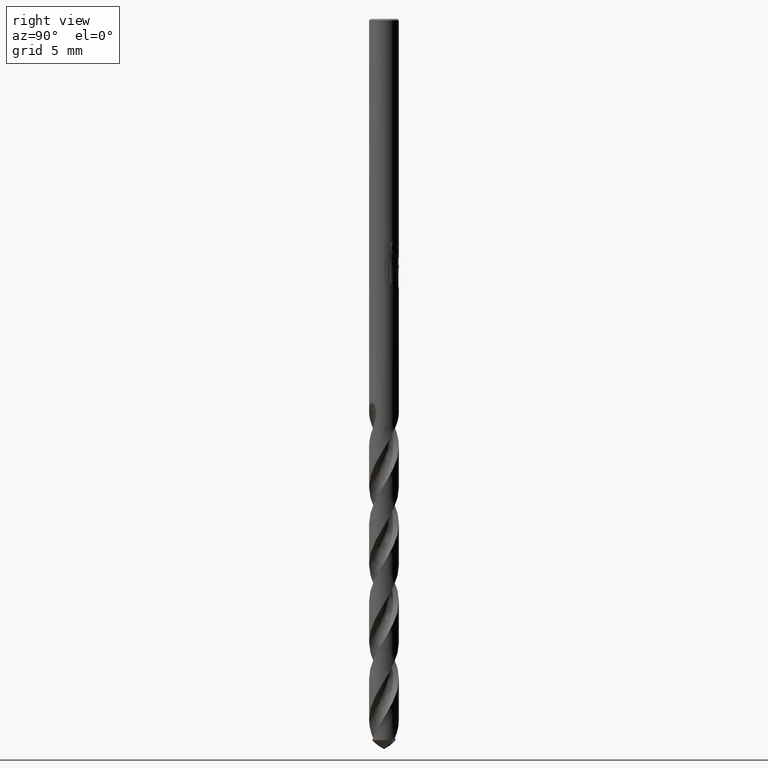
[diagram: clean part render]
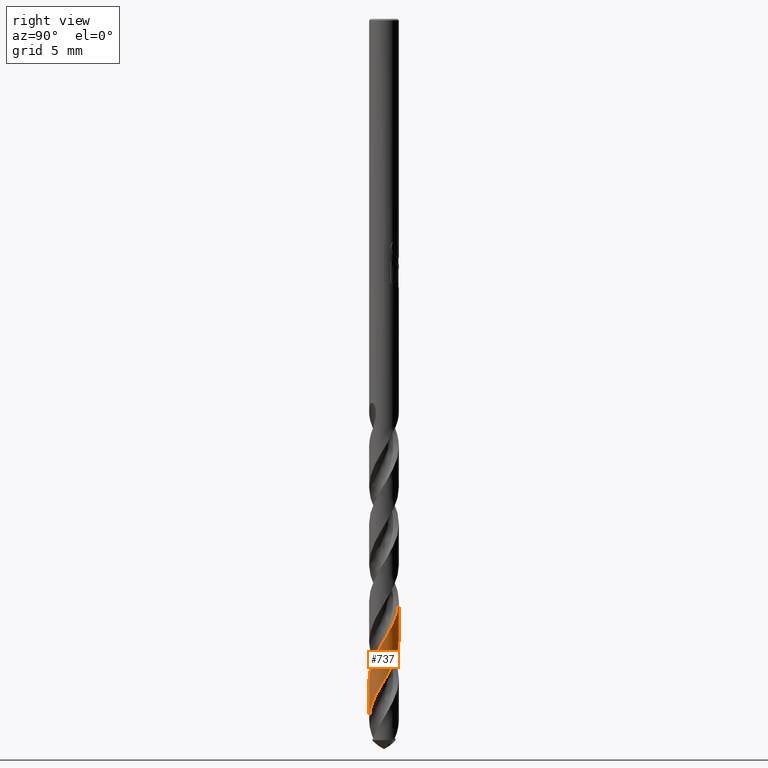
[diagram: same view with one face highlighted and labeled with its STEP entity id]
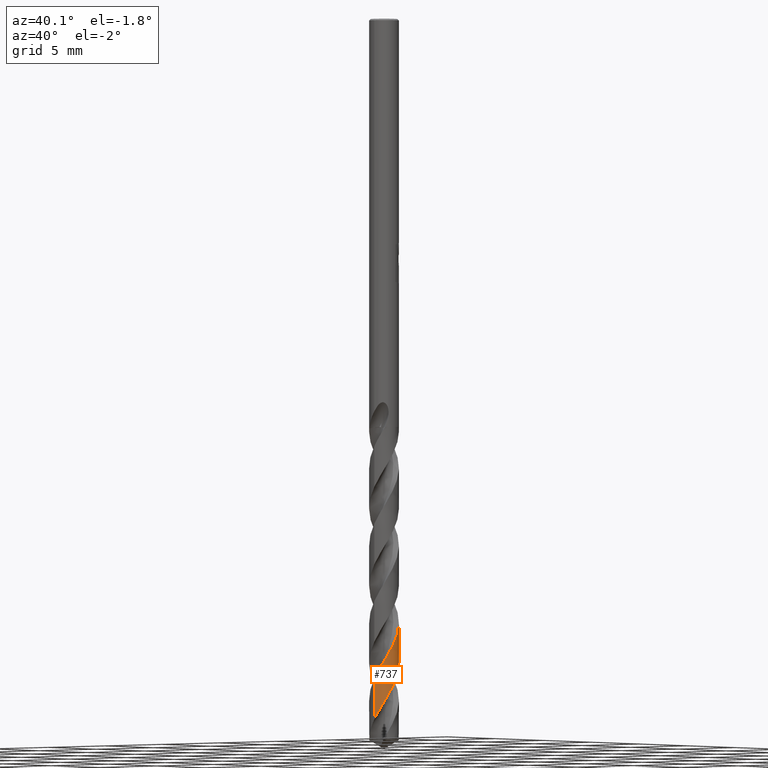
[diagram: same view with one face highlighted and labeled with its STEP entity id]
A machine part, right view. The second image highlights one B-rep face of the part: STEP entity #737.
A second angle (auxiliary view) of the same face is appended — the face is thin or edge-on in the first view.
In plain terms, the highlighted conical surface has half-angle 0 deg.
Its self-contained STEP definition (entity closure, byte-faithful):
#315=VERTEX_POINT('',#849);
#473=VERTEX_POINT('',#1020);
#583=EDGE_CURVE('',#795,#473,#1138,.T.);
#611=VERTEX_POINT('',#1168);
#629=EDGE_CURVE('',#315,#611,#1186,.T.);
#737=ADVANCED_FACE('',(#1308),#1309,.T.);
#755=EDGE_CURVE('',#795,#611,#1328,.T.);
#759=EDGE_CURVE('',#315,#473,#1332,.T.);
#795=VERTEX_POINT('',#1372);
#849=CARTESIAN_POINT('',(-2.18608580473682E-013,0.999955628579479,-39.0815229403631));
#1020=CARTESIAN_POINT('',(-1.05254811890926E-016,-0.999980393976244,-44.2820431254901));
#1138=LINE('',#4629,#4630);
#1168=CARTESIAN_POINT('',(1.05969621609961E-014,0.999968680696698,-41.8223552276919));
#1186=LINE('',#5143,#5144);
#1308=FACE_OUTER_BOUND('',#7121,.T.);
#1309=CONICAL_SURFACE('',#7122,0.99995,4.76209992157318E-006);
#1328=B_SPLINE_CURVE_WITH_KNOTS('',3,(#7187,#7188,#7189,#7190,#7191,#7192,#7193,#7194,#7195,#7196,#7197,#7198,#7199,#7200,#7201,#7202,#7203,#7204,#7205,#7206,#7207,#7208,#7209,#7210,#7211,#7212,#7213,#7214,#7215,#7216,#7217,#7218,#7219,#7220,#7221,#7222,#7223,#7224,#7225,#7226,#7227,#7228,#7229,#7230,#7231,#7232,#7233,#7234,#7235,#7236,#7237,#7238,#7239,#7240,#7241,#7242,#7243,#7244,#7245,#7246,#7247,#7248,#7249,#7250,#7251,#7252,#7253,#7254,#7255,#7256,#7257,#7258,#7259,#7260,#7261,#7262,#7263,#7264,#7265,#7266,#7267,#7268,#7269,#7270,#7271,#7272,#7273,#7274,#7275,#7276,#7277,#7278,#7279,#7280,#7281,#7282,#7283,#7284,#7285,#7286,#7287,#7288,#7289,#7290,#7291,#7292,#7293,#7294,#7295,#7296,#7297,#7298,#7299,#7300,#7301,#7302,#7303,#7304,#7305,#7306,#7307,#7308,#7309,#7310,#7311,#7312,#7313,#7314,#7315,#7316,#7317,#7318,#7319,#7320,#7321,#7322,#7323,#7324,#7325,#7326,#7327,#7328,#7329,#7330,#7331,#7332,#7333,#7334,#7335,#7336,#7337,#7338,#7339,#7340,#7341,#7342,#7343,#7344,#7345,#7346,#7347,#7348),.UNSPECIFIED.,.F.,.F.,(4,2,2,2,2,2,2,2,2,2,2,2,2,2,2,2,2,2,2,2,2,2,2,2,2,2,2,2,2,2,2,2,2,2,2,2,2,2,2,2,2,2,2,2,2,2,2,2,2,2,2,2,2,2,2,2,2,2,2,2,2,2,2,2,2,2,2,2,2,2,2,2,2,2,2,2,2,2,2,2,4),(0.0,0.140564455657881,0.705910972769532,0.96913414407209,1.35393639490201,1.53594426473142,1.7530889950736,2.45448441391358,2.49523314449073,3.09830556355897,3.34016229741105,4.03058293585882,4.11538521269099,4.75953051351781,4.95781017947195,5.33016819367588,5.51299303997374,5.73848300044366,6.43810748282622,6.4800193485302,7.07575574318855,7.59217081390022,7.95721429921044,8.15742826828851,8.53060160815402,8.7143819419641,9.09848745840183,9.45959927504986,10.0113818257194,10.3773914054012,10.5676570087411,10.9532641035751,11.1367819995707,11.3497099029085,12.0661004877584,12.1064505496225,12.7260932607966,13.1069669425992,13.4657956578065,13.9984170846046,14.3614654606973,14.5547068180242,14.9317204920314,15.1141059748938,15.3324123124755,16.036191029549,16.0772770219455,16.6808370477866,16.9232669903893,17.6134567355966,17.6988892302687,18.3416180911916,18.5429115427709,18.9133919437673,19.0967365593222,19.4801550427055,19.8383239885714,20.4003267929132,20.7656810762996,20.9518643670263,21.3422117921762,21.5251617782646,21.7342006610223,22.1053374795917,22.4338506619976,22.4534439191066,23.0081590553991,23.8180861949536,23.9479194944267,24.0768830279872,24.163270212141,24.2538189139902,24.3949603098037,24.5084417014939,24.5931835029819,24.6441638688701,24.689904101752,24.7480899906125,24.86688419515,25.1213909236893,25.4279416749134),.UNSPECIFIED.);
#1332=B_SPLINE_CURVE_WITH_KNOTS('',3,(#7353,#7354,#7355,#7356,#7357,#7358,#7359,#7360,#7361,#7362,#7363,#7364,#7365,#7366,#7367,#7368,#7369,#7370,#7371,#7372,#7373,#7374,#7375,#7376,#7377,#7378,#7379,#7380,#7381,#7382,#7383,#7384,#7385,#7386,#7387,#7388,#7389,#7390,#7391,#7392,#7393,#7394,#7395,#7396,#7397,#7398,#7399,#7400,#7401,#7402,#7403,#7404,#7405,#7406,#7407,#7408,#7409,#7410,#7411,#7412,#7413,#7414,#7415,#7416,#7417,#7418,#7419,#7420,#7421,#7422,#7423,#7424,#7425,#7426,#7427,#7428,#7429,#7430,#7431,#7432,#7433,#7434,#7435,#7436,#7437,#7438,#7439,#7440,#7441,#7442,#7443,#7444,#7445,#7446,#7447,#7448,#7449,#7450,#7451,#7452,#7453,#7454,#7455,#7456,#7457,#7458,#7459,#7460,#7461,#7462,#7463,#7464,#7465,#7466,#7467,#7468,#7469,#7470,#7471,#7472,#7473,#7474,#7475,#7476,#7477,#7478,#7479,#7480,#7481,#7482,#7483,#7484,#7485,#7486,#7487,#7488,#7489,#7490,#7491,#7492,#7493,#7494,#7495,#7496,#7497,#7498,#7499,#7500,#7501,#7502,#7503,#7504,#7505,#7506,#7507,#7508,#7509,#7510,#7511,#7512,#7513,#7514,#7515,#7516,#7517,#7518,#7519,#7520,#7521,#7522,#7523,#7524,#7525,#7526,#7527,#7528,#7529,#7530,#7531,#7532,#7533,#7534,#7535,#7536,#7537,#7538,#7539,#7540,#7541,#7542,#7543,#7544,#7545,#7546,#7547,#7548,#7549,#7550,#7551,#7552,#7553,#7554,#7555,#7556,#7557,#7558,#7559,#7560),.UNSPECIFIED.,.F.,.F.,(4,2,2,2,2,2,2,2,2,2,2,2,2,2,2,2,2,2,2,2,2,2,2,2,2,2,2,2,2,2,2,2,2,2,2,2,2,2,2,2,2,2,2,2,2,2,2,2,2,2,2,2,2,2,2,2,2,2,2,2,2,2,2,2,2,2,2,2,2,2,2,2,2,2,2,2,2,2,2,2,2,2,2,2,2,2,2,2,2,2,2,2,2,2,2,2,2,2,2,2,2,2,2,4),(0.0,0.070093670708242,0.0892226509933403,0.0981457888768246,0.103952079739878,0.108542523141387,0.112137212113539,0.114929148139967,0.117082761360161,0.118734678135138,0.119996056034912,0.120955781249582,0.12168394898939,0.122235228024858,0.24480868383175,0.273356355975355,0.288902510916104,0.301907356563827,0.317265195362751,0.344957297456819,0.379086675039331,0.424483255215321,0.565256895664594,0.630425794679281,0.679644420351133,0.733074871864472,0.762228760970097,0.835259402492003,1.0057197183772,1.1658654022676,1.18585962247996,1.52860160674236,1.57313255818488,2.03668523874026,2.22333953402721,2.45809219165768,2.94994322032421,3.25617156440019,3.8288138071226,3.94217262629708,4.36112238801579,4.53271253655954,4.80302610480046,5.30941364745821,5.5795891243931,6.13781468433169,6.36980223202512,6.95994976968794,7.01331592364357,7.40012039465199,7.75912614930561,7.78469109723106,8.16815858082124,8.5266956302814,8.55259748258698,8.92980494258499,9.28733368322655,9.34033971356227,9.72933461668136,9.9084120232756,10.2333849386378,10.7985280560881,10.9129363589856,11.3259394095172,11.5042181303728,11.7777920299031,12.2838220434481,12.5527120870136,13.1096086441436,13.3415945511472,13.9304186020947,13.983751450188,14.3694780677714,14.7278340101031,14.75340024316,15.1353898038781,15.4932034728304,15.5191530255325,15.8942037479938,16.2508823478335,16.3041844856681,16.6895760345817,17.0476604404329,17.0604604679671,17.4310471707016,18.1507132899162,18.5013784739701,18.7488030849239,19.3176892963192,19.4300091250434,19.8481253783219,20.0187993666651,20.2886075464374,20.7940084789581,21.0618729570711,21.619220727253,21.8500499881893,22.4371133771515,22.4899614126565,22.8779147357416,23.4854494898643,23.7862900006021,23.9381718812205,24.0892537509298),.UNSPECIFIED.);
#1372=CARTESIAN_POINT('',(-5.38096767631217E-012,-0.999993446951017,-47.023055491423));
#4629=CARTESIAN_POINT('',(1.22553561540051E-016,-0.99995,-37.8995696904862));
#4630=VECTOR('',#8702,1.0);
#5143=CARTESIAN_POINT('',(-1.22355463160886E-016,0.99995,-37.8995696904862));
#5144=VECTOR('',#8743,1.0);
#7121=EDGE_LOOP('',(#8923,#8924,#8925,#8926));
#7122=AXIS2_PLACEMENT_3D('',#8927,#8928,#8929);
#7187=CARTESIAN_POINT('',(-0.738484525051719,-0.67427042517015,-48.3991393809724));
#7188=CARTESIAN_POINT('',(-0.722199315005534,-0.692106272565409,-48.35898905715));
#7189=CARTESIAN_POINT('',(-0.705339529610619,-0.709276450287738,-48.3187399679762));
#7190=CARTESIAN_POINT('',(-0.617729785424609,-0.792308193506981,-48.117561982592));
#7191=CARTESIAN_POINT('',(-0.53816816169285,-0.848412606628382,-47.9591542025126));
#7192=CARTESIAN_POINT('',(-0.411158045886165,-0.912681508742219,-47.7237100044493));
#7193=CARTESIAN_POINT('',(-0.369552527325461,-0.930297163590966,-47.6485890662762));
#7194=CARTESIAN_POINT('',(-0.264753109744293,-0.966557372480458,-47.4645833204485));
#7195=CARTESIAN_POINT('',(-0.200442660016673,-0.981927470895965,-47.3561282568962));
#7196=CARTESIAN_POINT('',(-0.103973603421656,-0.99506552730784,-47.1954615719139));
#7197=CARTESIAN_POINT('',(-0.0728596298296796,-0.997823310659707,-47.1439326218183));
#7198=CARTESIAN_POINT('',(-0.00455217296671234,-1.00067453909161,-47.0306717324577));
#7199=CARTESIAN_POINT('',(0.0325771020062908,-1.00014922136005,-46.9688059508543));
#7200=CARTESIAN_POINT('',(0.188959270596307,-0.989245724266842,-46.7084358859468));
#7201=CARTESIAN_POINT('',(0.305707973679284,-0.959572063556649,-46.5143929488935));
#7202=CARTESIAN_POINT('',(0.420677671741299,-0.907225690007048,-46.3040624505032));
#7203=CARTESIAN_POINT('',(0.426957484545644,-0.904287404632888,-46.2925092983669));
#7204=CARTESIAN_POINT('',(0.52609439421267,-0.856632316758311,-46.1094570126849));
#7205=CARTESIAN_POINT('',(0.611614923219036,-0.797865416588582,-45.9410527638497));
#7206=CARTESIAN_POINT('',(0.716885875927187,-0.698403557398639,-45.7014017591294));
#7207=CARTESIAN_POINT('',(0.745151172716409,-0.668149737055001,-45.6325083997187));
#7208=CARTESIAN_POINT('',(0.846306494784769,-0.545523237120697,-45.3684316947228));
#7209=CARTESIAN_POINT('',(0.904506802091092,-0.442318284594167,-45.1773920805992));
#7210=CARTESIAN_POINT('',(0.948239372122953,-0.317832728097977,-44.9579148437989));
#7211=CARTESIAN_POINT('',(0.952722592307633,-0.304131180416973,-44.9338834902299));
#7212=CARTESIAN_POINT('',(0.98880663848588,-0.18518052744856,-44.7272045356481));
#7213=CARTESIAN_POINT('',(1.00316935284512,-0.0755265524892393,-44.5482782947757));
#7214=CARTESIAN_POINT('',(0.998226970857536,0.0681871703622886,-44.3098118033893));
#7215=CARTESIAN_POINT('',(0.995352948405098,0.101858463290165,-44.2534818325813));
#7216=CARTESIAN_POINT('',(0.982188357173267,0.198224366580504,-44.092014779339));
#7217=CARTESIAN_POINT('',(0.967616208646302,0.260266351971846,-43.9873997487296));
#7218=CARTESIAN_POINT('',(0.93714724149427,0.350272334577914,-43.8306007354687));
#7219=CARTESIAN_POINT('',(0.925740546419785,0.379387239958744,-43.7790329503057));
#7220=CARTESIAN_POINT('',(0.897305876097893,0.443033935710796,-43.6636070012304));
#7221=CARTESIAN_POINT('',(0.879623673713499,0.477164172754448,-43.5995999179408));
#7222=CARTESIAN_POINT('',(0.799400228556712,0.612416719920957,-43.3383914320007));
#7223=CARTESIAN_POINT('',(0.721071717432096,0.702911528629259,-43.1455100604279));
#7224=CARTESIAN_POINT('',(0.623284372833302,0.781994301472576,-42.9362034188597));
#7225=CARTESIAN_POINT('',(0.617722208691774,0.78639531290022,-42.9243818005519));
#7226=CARTESIAN_POINT('',(0.53226363884951,0.852546701034206,-42.7444772765386));
#7227=CARTESIAN_POINT('',(0.443407953480435,0.902002266099788,-42.5792834322102));
#7228=CARTESIAN_POINT('',(0.26603709232243,0.967928801037208,-42.2663299027652));
#7229=CARTESIAN_POINT('',(0.179983198328796,0.987567810031899,-42.1202672236055));
#7230=CARTESIAN_POINT('',(0.0304203724141995,1.00143992401368,-41.8722912994017));
#7231=CARTESIAN_POINT('',(-0.0318201278840287,1.00138324211251,-41.7702306425811));
#7232=CARTESIAN_POINT('',(-0.127404566661899,0.992401015135547,-41.6110304881607));
#7233=CARTESIAN_POINT('',(-0.161001948686243,0.98750481164016,-41.5544368146233));
#7234=CARTESIAN_POINT('',(-0.2563757485849,0.968611790519179,-41.3930194069383));
#7235=CARTESIAN_POINT('',(-0.317260389422051,0.95042940782693,-41.2887059628722));
#7236=CARTESIAN_POINT('',(-0.405134201255511,0.91475483835804,-41.1322107378044));
#7237=CARTESIAN_POINT('',(-0.433525790166505,0.90164304112015,-41.0806386969442));
#7238=CARTESIAN_POINT('',(-0.519112542617691,0.857150920194061,-40.9209265413749));
#7239=CARTESIAN_POINT('',(-0.573913671307043,0.821474165488676,-40.81225084292));
#7240=CARTESIAN_POINT('',(-0.672873417007595,0.742253506095299,-40.6026327508775));
#7241=CARTESIAN_POINT('',(-0.717185294131617,0.69953089589547,-40.5017153477991));
#7242=CARTESIAN_POINT('',(-0.818594916441859,0.581923515336604,-40.2449868114184));
#7243=CARTESIAN_POINT('',(-0.869588934551328,0.50256127073063,-40.0890846862779));
#7244=CARTESIAN_POINT('',(-0.934797766701728,0.360496230219901,-39.8310714388432));
#7245=CARTESIAN_POINT('',(-0.955396355827141,0.301645882378218,-39.7288079678262));
#7246=CARTESIAN_POINT('',(-0.978175617313712,0.210071746601936,-39.5722045844872));
#7247=CARTESIAN_POINT('',(-0.984435954880597,0.178446877150586,-39.518461285887));
#7248=CARTESIAN_POINT('',(-0.998750606292269,0.0817991847153003,-39.356305899369));
#7249=CARTESIAN_POINT('',(-1.00198001256782,0.0161857921076621,-39.2485416826285));
#7250=CARTESIAN_POINT('',(-0.997189947745499,-0.0806253239972092,-39.0885710932637));
#7251=CARTESIAN_POINT('',(-0.994184817899785,-0.111707754439696,-39.0370511716718));
#7252=CARTESIAN_POINT('',(-0.984586581144885,-0.178343812516999,-38.9254984830411));
#7253=CARTESIAN_POINT('',(-0.977508195463067,-0.213743066209354,-38.865349259055));
#7254=CARTESIAN_POINT('',(-0.938388528798712,-0.36611458176961,-38.6040953760411));
#7255=CARTESIAN_POINT('',(-0.887185984616681,-0.476885560361333,-38.4076231344038));
#7256=CARTESIAN_POINT('',(-0.813663005234211,-0.581293119050283,-38.1948754347008));
#7257=CARTESIAN_POINT('',(-0.809664933869712,-0.58684989261496,-38.1834785026486));
#7258=CARTESIAN_POINT('',(-0.742953491580983,-0.677567801648206,-37.9961451671542));
#7259=CARTESIAN_POINT('',(-0.667170111709713,-0.752339015263871,-37.8235785508865));
#7260=CARTESIAN_POINT('',(-0.527891837208835,-0.851745211461275,-37.5401924610738));
#7261=CARTESIAN_POINT('',(-0.471290054818933,-0.88433035798103,-37.4316621593313));
#7262=CARTESIAN_POINT('',(-0.355793532563554,-0.936528011283509,-37.2221017714091));
#7263=CARTESIAN_POINT('',(-0.297559327921842,-0.956624208156466,-37.1211017112851));
#7264=CARTESIAN_POINT('',(-0.149224654098581,-0.992949092297788,-36.8685823929057));
#7265=CARTESIAN_POINT('',(-0.0580332707330558,-1.00243154838596,-36.7169685967634));
#7266=CARTESIAN_POINT('',(0.0955284822783572,-0.99731604134636,-36.4633333765432));
#7267=CARTESIAN_POINT('',(0.157330255329361,-0.989435558160912,-36.3611583002987));
#7268=CARTESIAN_POINT('',(0.250122825421102,-0.968717316577472,-36.203426150999));
#7269=CARTESIAN_POINT('',(0.281916721533923,-0.959945597886621,-36.1484433055983));
#7270=CARTESIAN_POINT('',(0.374408526113763,-0.929433273552373,-35.9867705570036));
#7271=CARTESIAN_POINT('',(0.433579433518753,-0.903365563152971,-35.880662719845));
#7272=CARTESIAN_POINT('',(0.517201767387645,-0.85636426862262,-35.7223580711615));
#7273=CARTESIAN_POINT('',(0.543695052960109,-0.839790057949262,-35.6708101158698));
#7274=CARTESIAN_POINT('',(0.600027797089361,-0.800773480487858,-35.5573055447826));
#7275=CARTESIAN_POINT('',(0.629432586065166,-0.777865625406259,-35.495215542564));
#7276=CARTESIAN_POINT('',(0.747792525923413,-0.674578821729575,-35.2342958168084));
#7277=CARTESIAN_POINT('',(0.823070958735742,-0.580281713212356,-35.0399177170882));
#7278=CARTESIAN_POINT('',(0.883198643936928,-0.468913267416842,-34.8291812551183));
#7279=CARTESIAN_POINT('',(0.886449126114357,-0.462739317914894,-34.817553600221));
#7280=CARTESIAN_POINT('',(0.936630664986026,-0.364942762399821,-34.6346154050431));
#7281=CARTESIAN_POINT('',(0.969262469088742,-0.266568697239353,-34.4663942232149));
#7282=CARTESIAN_POINT('',(0.993103213804088,-0.123818756405705,-34.2269020238067));
#7283=CARTESIAN_POINT('',(0.997366795278706,-0.0826177908383093,-34.1579780065168));
#7284=CARTESIAN_POINT('',(1.00393614621348,0.075947148035791,-33.894316417437));
#7285=CARTESIAN_POINT('',(0.988091069301638,0.193087065308629,-33.7036904059803));
#7286=CARTESIAN_POINT('',(0.947933282006336,0.318576630617238,-33.4845351078282));
#7287=CARTESIAN_POINT('',(0.943217329552829,0.332279964673976,-33.4603750352378));
#7288=CARTESIAN_POINT('',(0.900368331915633,0.448492195048158,-33.2544096568378));
#7289=CARTESIAN_POINT('',(0.845983423436226,0.544193928412243,-33.0762680646632));
#7290=CARTESIAN_POINT('',(0.755527515236829,0.655900238141272,-32.8379327642879));
#7291=CARTESIAN_POINT('',(0.73264944202365,0.681356596329483,-32.780882349355));
#7292=CARTESIAN_POINT('',(0.664065279838295,0.750221903146912,-32.6195096910319));
#7293=CARTESIAN_POINT('',(0.615424109544901,0.790633754251854,-32.5156789593093));
#7294=CARTESIAN_POINT('',(0.537301446904024,0.843880321516215,-32.3596692865335));
#7295=CARTESIAN_POINT('',(0.5106567020185,0.860262366127585,-32.3080899212047));
#7296=CARTESIAN_POINT('',(0.426163404476766,0.906914173439775,-32.1482940055048));
#7297=CARTESIAN_POINT('',(0.366069440372105,0.932797556368061,-32.0395426606916));
#7298=CARTESIAN_POINT('',(0.245600507803034,0.971211687908972,-31.8304279907407));
#7299=CARTESIAN_POINT('',(0.185839236596231,0.984396137637914,-31.7300780045323));
#7300=CARTESIAN_POINT('',(0.0301549368880414,1.00404919783345,-31.4706724286525));
#7301=CARTESIAN_POINT('',(-0.0661683235198309,1.00233028128501,-31.3115216833512));
#7302=CARTESIAN_POINT('',(-0.222436993319134,0.976855988370688,-31.0501945551338));
#7303=CARTESIAN_POINT('',(-0.282798771591892,0.961101826155468,-30.9478685278629));
#7304=CARTESIAN_POINT('',(-0.370937343573779,0.929106936141538,-30.7922107509228));
#7305=CARTESIAN_POINT('',(-0.40011747535074,0.916919427372441,-30.7394943332706));
#7306=CARTESIAN_POINT('',(-0.488732508621416,0.874860817487525,-30.5767019026326));
#7307=CARTESIAN_POINT('',(-0.545844975288704,0.840431856561825,-30.4673263229924));
#7308=CARTESIAN_POINT('',(-0.624217947552668,0.781764452475701,-30.3057252797825));
#7309=CARTESIAN_POINT('',(-0.648299129087411,0.761909142557163,-30.2542171281949));
#7310=CARTESIAN_POINT('',(-0.697753234408749,0.717100465777101,-30.1435999579022));
#7311=CARTESIAN_POINT('',(-0.722773866213816,0.691870199852743,-30.0843832967033));
#7312=CARTESIAN_POINT('',(-0.78835206811103,0.618303744158127,-29.9207679966562));
#7313=CARTESIAN_POINT('',(-0.825839547201061,0.567291906712232,-29.81685589196));
#7314=CARTESIAN_POINT('',(-0.887063124239315,0.464844546282743,-29.6199215353713));
#7315=CARTESIAN_POINT('',(-0.911608721918706,0.414589207457502,-29.5278674180468));
#7316=CARTESIAN_POINT('',(-0.932992620763499,0.359659721926498,-29.4296126140782));
#7317=CARTESIAN_POINT('',(-0.934180513532356,0.356562965545715,-29.4240816467865));
#7318=CARTESIAN_POINT('',(-0.968690439556052,0.265234166422015,-29.2613770932965));
#7319=CARTESIAN_POINT('',(-0.989481026963274,0.172496765325743,-29.1064065065218));
#7320=CARTESIAN_POINT('',(-1.00766276850188,-0.0603278871683423,-28.7211288933858));
#7321=CARTESIAN_POINT('',(-0.989574727183177,-0.198481700376152,-28.4919468398565));
#7322=CARTESIAN_POINT('',(-0.937303391110441,-0.348933322777412,-28.2297364113197));
#7323=CARTESIAN_POINT('',(-0.929361732239772,-0.369579014567051,-28.1935794260239));
#7324=CARTESIAN_POINT('',(-0.912073788988557,-0.41038517895127,-28.1216482705659));
#7325=CARTESIAN_POINT('',(-0.903202938681155,-0.42950183723322,-28.0879368961998));
#7326=CARTESIAN_POINT('',(-0.887485007708799,-0.46084073257251,-28.0312903967272));
#7327=CARTESIAN_POINT('',(-0.880964888541979,-0.473178787159706,-28.008539366582));
#7328=CARTESIAN_POINT('',(-0.867209170076392,-0.497959840687348,-27.9617182259691));
#7329=CARTESIAN_POINT('',(-0.859973994520044,-0.510343689664013,-27.9377044335752));
#7330=CARTESIAN_POINT('',(-0.841028561490478,-0.541260961991938,-27.8758880623207));
#7331=CARTESIAN_POINT('',(-0.82914636877236,-0.559251577683591,-27.8381023031855));
#7332=CARTESIAN_POINT('',(-0.807285337345083,-0.590236853780586,-27.769050898406));
#7333=CARTESIAN_POINT('',(-0.80055046340868,-0.599152277309695,-27.7476477690733));
#7334=CARTESIAN_POINT('',(-0.792278831699873,-0.61002577354522,-27.7222076036027));
#7335=CARTESIAN_POINT('',(-0.788636110189819,-0.614729939399975,-27.7114009450405));
#7336=CARTESIAN_POINT('',(-0.782613556930654,-0.622360156294485,-27.694185222821));
#7337=CARTESIAN_POINT('',(-0.780310254399478,-0.625246038617839,-27.6877436921523));
#7338=CARTESIAN_POINT('',(-0.775858396839913,-0.630759552689185,-27.6755665178735));
#7339=CARTESIAN_POINT('',(-0.773719031952073,-0.633382293062382,-27.6698284604895));
#7340=CARTESIAN_POINT('',(-0.76877762754844,-0.639376518337915,-27.6568350560977));
#7341=CARTESIAN_POINT('',(-0.765954919068644,-0.64275604399948,-27.6495949718059));
#7342=CARTESIAN_POINT('',(-0.757190240507948,-0.653106420282382,-27.6276711657615));
#7343=CARTESIAN_POINT('',(-0.751070364699547,-0.660141409753493,-27.6131107258865));
#7344=CARTESIAN_POINT('',(-0.73102927923199,-0.682507889874452,-27.567782501803));
#7345=CARTESIAN_POINT('',(-0.716266473000236,-0.698045771616689,-27.5376899887702));
#7346=CARTESIAN_POINT('',(-0.680929370179428,-0.732712386911077,-27.4726965691021));
#7347=CARTESIAN_POINT('',(-0.65997418078362,-0.75173713370598,-27.4384239665006));
#7348=CARTESIAN_POINT('',(-0.637187381357094,-0.770579196874355,-27.405));
#7353=CARTESIAN_POINT('',(-0.695006639413528,0.71886426311742,-27.405));
#7354=CARTESIAN_POINT('',(-0.686753916768532,0.726843229698256,-27.4253502132792));
#7355=CARTESIAN_POINT('',(-0.678323015206344,0.734720573492868,-27.445708737283));
#7356=CARTESIAN_POINT('',(-0.667299952437083,0.744662066626922,-27.4716005979767));
#7357=CARTESIAN_POINT('',(-0.664921790348519,0.746786438456378,-27.4771456817759));
#7358=CARTESIAN_POINT('',(-0.661409255279312,0.749893888844219,-27.4852733811152));
#7359=CARTESIAN_POINT('',(-0.660288507372421,0.750880929202602,-27.4878575092011));
#7360=CARTESIAN_POINT('',(-0.658432427064547,0.752508188052604,-27.4921217399208));
#7361=CARTESIAN_POINT('',(-0.657699276534681,0.753149065441544,-27.4938021799012));
#7362=CARTESIAN_POINT('',(-0.656383716012707,0.7542956601953,-27.4968104643701));
#7363=CARTESIAN_POINT('',(-0.655801918011095,0.754801552819003,-27.4981383901501));
#7364=CARTESIAN_POINT('',(-0.654762789199801,0.75570299854625,-27.5005057279552));
#7365=CARTESIAN_POINT('',(-0.654305849341278,0.756098669678374,-27.5015452072493));
#7366=CARTESIAN_POINT('',(-0.65349294986344,0.756801281530981,-27.5033917411134));
#7367=CARTESIAN_POINT('',(-0.653137234249793,0.757108299069921,-27.5041988453015));
#7368=CARTESIAN_POINT('',(-0.65250649155641,0.757651916042392,-27.505628344354));
#7369=CARTESIAN_POINT('',(-0.652231613782794,0.757888564023244,-27.5062507732045));
#7370=CARTESIAN_POINT('',(-0.651745513181739,0.758306597509196,-27.5073505232775));
#7371=CARTESIAN_POINT('',(-0.651534380223361,0.758488012947103,-27.5078278665955));
#7372=CARTESIAN_POINT('',(-0.651161806637446,0.75880787533276,-27.5086696366418));
#7373=CARTESIAN_POINT('',(-0.651000419269214,0.758946340464901,-27.5090340774535));
#7374=CARTESIAN_POINT('',(-0.65071610988029,0.759190111235994,-27.5096757663384));
#7375=CARTESIAN_POINT('',(-0.65059321913052,0.759295427704186,-27.5099530230204));
#7376=CARTESIAN_POINT('',(-0.650377013084256,0.759480623642356,-27.5104406189358));
#7377=CARTESIAN_POINT('',(-0.650283716070796,0.759560509412632,-27.510650963144));
#7378=CARTESIAN_POINT('',(-0.650119742914925,0.759700859415881,-27.5110205411348));
#7379=CARTESIAN_POINT('',(-0.650049077239646,0.759761327407562,-27.5111797780874));
#7380=CARTESIAN_POINT('',(-0.634263197970109,0.773265348984374,-27.5467434081671));
#7381=CARTESIAN_POINT('',(-0.618091721199027,0.786268234308424,-27.5813691539059));
#7382=CARTESIAN_POINT('',(-0.597112869549945,0.802049225557741,-27.6243469517687));
#7383=CARTESIAN_POINT('',(-0.593118582100216,0.805007721581712,-27.6324500303653));
#7384=CARTESIAN_POINT('',(-0.586895794777429,0.809544959485163,-27.6449629053831));
#7385=CARTESIAN_POINT('',(-0.584692888697846,0.811137484505697,-27.6493714128908));
#7386=CARTESIAN_POINT('',(-0.58063001811265,0.814049401456039,-27.657465982856));
#7387=CARTESIAN_POINT('',(-0.578773428977938,0.815370477906136,-27.6611512050839));
#7388=CARTESIAN_POINT('',(-0.574710915180997,0.818240301669586,-27.6691871524839));
#7389=CARTESIAN_POINT('',(-0.572503308006053,0.819786468027862,-27.6735361711871));
#7390=CARTESIAN_POINT('',(-0.566292602875384,0.824098947190494,-27.6857260027351));
#7391=CARTESIAN_POINT('',(-0.562274739911441,0.826845598469103,-27.69355945903));
#7392=CARTESIAN_POINT('',(-0.553253988293155,0.832915979026763,-27.711052678553));
#7393=CARTESIAN_POINT('',(-0.548246152952279,0.83622077976043,-27.7207002484902));
#7394=CARTESIAN_POINT('',(-0.536512936314599,0.843813244860268,-27.7432048699239));
#7395=CARTESIAN_POINT('',(-0.529787962963132,0.848052427439174,-27.7560441851921));
#7396=CARTESIAN_POINT('',(-0.501649246832621,0.865317924127809,-27.8097335469335));
#7397=CARTESIAN_POINT('',(-0.480027388163827,0.877487083075364,-27.8507251090004));
#7398=CARTESIAN_POINT('',(-0.448028556968267,0.893982697163793,-27.9105244663407));
#7399=CARTESIAN_POINT('',(-0.437823760084602,0.899024296675206,-27.9294722045672));
#7400=CARTESIAN_POINT('',(-0.419782952585181,0.90755792205989,-27.9627150719036));
#7401=CARTESIAN_POINT('',(-0.411972758605289,0.911129908574778,-27.9770246068078));
#7402=CARTESIAN_POINT('',(-0.39558930854043,0.918369103900306,-28.0068562455782));
#7403=CARTESIAN_POINT('',(-0.387003304509916,0.922020362989878,-28.0223857662019));
#7404=CARTESIAN_POINT('',(-0.373645491477292,0.927481086105418,-28.0463750296144));
#7405=CARTESIAN_POINT('',(-0.368912419384235,0.929373923664618,-28.0548424616103));
#7406=CARTESIAN_POINT('',(-0.352262386837468,0.935885140999944,-28.0845121112813));
#7407=CARTESIAN_POINT('',(-0.34025928024056,0.940315969726997,-28.1056920511544));
#7408=CARTESIAN_POINT('',(-0.299955542492785,0.954319807017216,-28.176300233873));
#7409=CARTESIAN_POINT('',(-0.271298246767259,0.962860047691806,-28.2256351193585));
#7410=CARTESIAN_POINT('',(-0.215025468129447,0.976914639000762,-28.3214634848969));
#7411=CARTESIAN_POINT('',(-0.187520090511672,0.982563819635035,-28.3678331633429));
#7412=CARTESIAN_POINT('',(-0.156385422201784,0.987605983937985,-28.4200878338204));
#7413=CARTESIAN_POINT('',(-0.152925982237492,0.988147603981866,-28.4258901622732));
#7414=CARTESIAN_POINT('',(-0.0901077499026485,0.99764472430652,-28.5311712174467));
#7415=CARTESIAN_POINT('',(-0.0300263996940724,1.00126029162375,-28.6305722496939));
#7416=CARTESIAN_POINT('',(0.0378516387060977,0.999220208993788,-28.7429434680311));
#7417=CARTESIAN_POINT('',(0.0456524561608959,0.998894259336931,-28.7558576520909));
#7418=CARTESIAN_POINT('',(0.134612600613999,0.994132846492307,-28.903274161865));
#7419=CARTESIAN_POINT('',(0.21496417253504,0.979905880997458,-29.0375734821443));
#7420=CARTESIAN_POINT('',(0.32400406634097,0.946525438066899,-29.2262523226919));
#7421=CARTESIAN_POINT('',(0.354820349367274,0.935410396564348,-29.280364161259));
#7422=CARTESIAN_POINT('',(0.423045643601221,0.906943991137279,-29.4026367892316));
#7423=CARTESIAN_POINT('',(0.460005384697146,0.888766476798985,-29.4706688088671));
#7424=CARTESIAN_POINT('',(0.570545284234841,0.825665380552749,-29.6816282771529));
#7425=CARTESIAN_POINT('',(0.639602602364786,0.77342034697775,-29.8239649566117));
#7426=CARTESIAN_POINT('',(0.739439529402851,0.675234307444447,-30.055563235672));
#7427=CARTESIAN_POINT('',(0.774623045609713,0.634559193072659,-30.1441952913441));
#7428=CARTESIAN_POINT('',(0.865702173059835,0.510352364155037,-30.3993845764073));
#7429=CARTESIAN_POINT('',(0.91256587458917,0.420892054422219,-30.5647266035907));
#7430=CARTESIAN_POINT('',(0.951799081395376,0.307093153025406,-30.7638236361788));
#7431=CARTESIAN_POINT('',(0.957716592485911,0.288108311073887,-30.7967031880622));
#7432=CARTESIAN_POINT('',(0.982824500445155,0.198208484021114,-30.9512646293067));
#7433=CARTESIAN_POINT('',(0.994733752909929,0.125465949533516,-31.0727953982745));
#7434=CARTESIAN_POINT('',(1.00012926131684,0.0220058066491092,-31.2442705923059));
#7435=CARTESIAN_POINT('',(1.00033912012399,-0.00811978019228018,-31.2940537463489));
#7436=CARTESIAN_POINT('',(0.997375026846471,-0.085631527150049,-31.4223420164812));
#7437=CARTESIAN_POINT('',(0.992190988925557,-0.132822120102011,-31.5006704724957));
#7438=CARTESIAN_POINT('',(0.96775721157738,-0.266773115117882,-31.7262874308687));
#7439=CARTESIAN_POINT('',(0.940254799042581,-0.351662420484673,-31.8728099234179));
#7440=CARTESIAN_POINT('',(0.881378462479163,-0.474622383265117,-32.0982829453705));
#7441=CARTESIAN_POINT('',(0.857892023454633,-0.515859116582686,-32.1765843877127));
#7442=CARTESIAN_POINT('',(0.777240614668079,-0.636650498911196,-32.4172511404923));
#7443=CARTESIAN_POINT('',(0.711193145679822,-0.709689806378089,-32.5785841700248));
#7444=CARTESIAN_POINT('',(0.604080003694383,-0.797870843264288,-32.8080425652806));
#7445=CARTESIAN_POINT('',(0.571105299565382,-0.821793944685254,-32.8753488316377));
#7446=CARTESIAN_POINT('',(0.449492350279048,-0.899175823904581,-33.1142096257867));
#7447=CARTESIAN_POINT('',(0.35403844609804,-0.940875675472023,-33.2845707550027));
#7448=CARTESIAN_POINT('',(0.244764201641353,-0.969554584945675,-33.4714362954081));
#7449=CARTESIAN_POINT('',(0.235671769935242,-0.971804776935171,-33.4869283746576));
#7450=CARTESIAN_POINT('',(0.160425624276658,-0.989308701809274,-33.6147883372985));
#7451=CARTESIAN_POINT('',(0.0929163607015371,-0.997914884801917,-33.7271120608067));
#7452=CARTESIAN_POINT('',(-0.037918554517366,-1.00119597447331,-33.9438175932776));
#7453=CARTESIAN_POINT('',(-0.100924789852824,-0.996820689435417,-34.0477665711908));
#7454=CARTESIAN_POINT('',(-0.16754887935839,-0.985805207916072,-34.1594739124959));
#7455=CARTESIAN_POINT('',(-0.17197175176866,-0.985043303272319,-34.1668992672581));
#7456=CARTESIAN_POINT('',(-0.242646814391678,-0.972378109269838,-34.2857247507943));
#7457=CARTESIAN_POINT('',(-0.307525355377784,-0.953846759576048,-34.3970979707006));
#7458=CARTESIAN_POINT('',(-0.428498936189091,-0.905658033689903,-34.6127230132165));
#7459=CARTESIAN_POINT('',(-0.484644436537839,-0.876900312496369,-34.7165528564608));
#7460=CARTESIAN_POINT('',(-0.54156599610197,-0.840593668830966,-34.8282326979777));
#7461=CARTESIAN_POINT('',(-0.545383592440042,-0.838121858617368,-34.8357559561481));
#7462=CARTESIAN_POINT('',(-0.604540136260077,-0.799243941078773,-34.9528914053511));
#7463=CARTESIAN_POINT('',(-0.656130619533818,-0.757462775464233,-35.0624910792383));
#7464=CARTESIAN_POINT('',(-0.74782394249175,-0.666763161968653,-35.2760719715944));
#7465=CARTESIAN_POINT('',(-0.788205751207529,-0.618508581799039,-35.3796515612292));
#7466=CARTESIAN_POINT('',(-0.829085110562936,-0.559090094874818,-35.4989458948367));
#7467=CARTESIAN_POINT('',(-0.834254218292357,-0.551347305109489,-35.514344148414));
#7468=CARTESIAN_POINT('',(-0.876450904154172,-0.486189054909068,-35.6428258771342));
#7469=CARTESIAN_POINT('',(-0.907609142107263,-0.425195949814982,-35.7558583581695));
#7470=CARTESIAN_POINT('',(-0.943675229274378,-0.332185440337191,-35.9210320314239));
#7471=CARTESIAN_POINT('',(-0.953659205334565,-0.302334537207727,-35.9730573224241));
#7472=CARTESIAN_POINT('',(-0.977759707004186,-0.217095697406817,-36.1195755033947));
#7473=CARTESIAN_POINT('',(-0.988551194326964,-0.160947801628575,-36.2137665078166));
#7474=CARTESIAN_POINT('',(-1.00483612882753,-0.00555999392392716,-36.4726540335806));
#7475=CARTESIAN_POINT('',(-1.00044428769664,0.0941633443102953,-36.6361247902674));
#7476=CARTESIAN_POINT('',(-0.977551425517382,0.211394081807374,-36.8336701359631));
#7477=CARTESIAN_POINT('',(-0.973104620585946,0.231000961307233,-36.8669057010192));
#7478=CARTESIAN_POINT('',(-0.949900690907907,0.32069209409509,-37.0202915979203));
#7479=CARTESIAN_POINT('',(-0.924134390380528,0.388761067437378,-37.1403090519516));
#7480=CARTESIAN_POINT('',(-0.877020112880812,0.48136421732638,-37.3122853406539));
#7481=CARTESIAN_POINT('',(-0.86150621467564,0.508610355345955,-37.3640923203327));
#7482=CARTESIAN_POINT('',(-0.818993489498733,0.575725198477796,-37.4954853363186));
#7483=CARTESIAN_POINT('',(-0.790374652667592,0.614420530692086,-37.5748847037179));
#7484=CARTESIAN_POINT('',(-0.70126575406703,0.71834615970371,-37.8017182063994));
#7485=CARTESIAN_POINT('',(-0.63464731238641,0.777844130684637,-37.9483755117807));
#7486=CARTESIAN_POINT('',(-0.521844091305756,0.85429334459571,-38.1737412382991));
#7487=CARTESIAN_POINT('',(-0.480898765627594,0.877991874327116,-38.2517990942533));
#7488=CARTESIAN_POINT('',(-0.350558561572465,0.941583643623026,-38.4921007295296));
#7489=CARTESIAN_POINT('',(-0.256773645941833,0.971373649869129,-38.6533170188177));
#7490=CARTESIAN_POINT('',(-0.119824411476885,0.993587452317887,-38.8827660136803));
#7491=CARTESIAN_POINT('',(-0.0792198691903892,0.997644292224647,-38.9501818849833));
#7492=CARTESIAN_POINT('',(0.0648261644408162,1.00319673105455,-39.1890503369547));
#7493=CARTESIAN_POINT('',(0.168228789848566,0.991128107587619,-39.3593117667112));
#7494=CARTESIAN_POINT('',(0.277023714758896,0.960864978249517,-39.5460903442484));
#7495=CARTESIAN_POINT('',(0.286021087886315,0.958225277622019,-39.561598234159));
#7496=CARTESIAN_POINT('',(0.359775745419039,0.935455551821412,-39.6893449624786));
#7497=CARTESIAN_POINT('',(0.422359870207525,0.908915401062738,-39.8015409214051));
#7498=CARTESIAN_POINT('',(0.536970219699267,0.845902400182247,-40.0181005085615));
#7499=CARTESIAN_POINT('',(0.589193292845565,0.810398250624942,-40.1220328146723));
#7500=CARTESIAN_POINT('',(0.641205468825297,0.767331740976666,-40.2337350868614));
#7501=CARTESIAN_POINT('',(0.644648845604042,0.764441220540653,-40.2411728735483));
#7502=CARTESIAN_POINT('',(0.699226287327762,0.71799566457223,-40.3597685523926));
#7503=CARTESIAN_POINT('',(0.745854942755058,0.669428288595159,-40.4709013809104));
#7504=CARTESIAN_POINT('',(0.82604446445556,0.567039415425263,-40.6862499989589));
#7505=CARTESIAN_POINT('',(0.860083049218522,0.513952335555321,-40.7900466212903));
#7506=CARTESIAN_POINT('',(0.891004891181469,0.453938011334622,-40.9017179483927));
#7507=CARTESIAN_POINT('',(0.893067584242251,0.449866417687105,-40.9092677619003));
#7508=CARTESIAN_POINT('',(0.924514737480465,0.386723492653713,-41.0259860524446));
#7509=CARTESIAN_POINT('',(0.948002775981741,0.324916272414912,-41.1351460376702));
#7510=CARTESIAN_POINT('',(0.981619605220943,0.200721654515048,-41.3482131834101));
#7511=CARTESIAN_POINT('',(0.992281054823529,0.138752128273821,-41.4517238425782));
#7512=CARTESIAN_POINT('',(0.997777090188427,0.0668119541803517,-41.5710579256033));
#7513=CARTESIAN_POINT('',(0.998359821529904,0.0574519465296993,-41.5865681345096));
#7514=CARTESIAN_POINT('',(1.00207185175236,-0.0196408238902493,-41.7143010229554));
#7515=CARTESIAN_POINT('',(0.998436031607347,-0.0875135716107802,-41.8264809989604));
#7516=CARTESIAN_POINT('',(0.978231988853873,-0.216723738906868,-42.0430211230321));
#7517=CARTESIAN_POINT('',(0.962640001604031,-0.277916196852699,-42.1469501604798));
#7518=CARTESIAN_POINT('',(0.94062306411142,-0.33937414416436,-42.2549373936865));
#7519=CARTESIAN_POINT('',(0.93985617094631,-0.341492272399253,-42.258663806052));
#7520=CARTESIAN_POINT('',(0.916667685352149,-0.404868006585401,-42.3703148851898));
#7521=CARTESIAN_POINT('',(0.888320271119357,-0.463768558599271,-42.4782440084467));
#7522=CARTESIAN_POINT('',(0.788680161938753,-0.627662406346478,-42.7958898126613));
#7523=CARTESIAN_POINT('',(0.702958183637244,-0.722370335515099,-43.0033569079751));
#7524=CARTESIAN_POINT('',(0.552630880999388,-0.835675970719435,-43.3152048091599));
#7525=CARTESIAN_POINT('',(0.500022479477483,-0.868183757273476,-43.4170809779756));
#7526=CARTESIAN_POINT('',(0.405692477550411,-0.915022467844324,-43.5912520083081));
#7527=CARTESIAN_POINT('',(0.365473268535533,-0.931814022209443,-43.663210860847));
#7528=CARTESIAN_POINT('',(0.229681007036042,-0.978372146065053,-43.9010697765702));
#7529=CARTESIAN_POINT('',(0.130640916436772,-0.996457525749521,-44.0658968022336));
#7530=CARTESIAN_POINT('',(0.0107381066165294,-1.00011825833702,-44.2642867385257));
#7531=CARTESIAN_POINT('',(-0.00903581397154658,-1.00013497880045,-44.2969773990934));
#7532=CARTESIAN_POINT('',(-0.102342640436742,-0.997447915438514,-44.4515289015777));
#7533=CARTESIAN_POINT('',(-0.175457937218122,-0.987216708749126,-44.5732393724294));
#7534=CARTESIAN_POINT('',(-0.275912126553741,-0.961634335476445,-44.7448016198239));
#7535=CARTESIAN_POINT('',(-0.304689789105093,-0.952908019868414,-44.7944916381613));
#7536=CARTESIAN_POINT('',(-0.377852797419124,-0.927066896978932,-44.9228129044513));
#7537=CARTESIAN_POINT('',(-0.421449427225678,-0.908075482181509,-45.0012682625773));
#7538=CARTESIAN_POINT('',(-0.542294576554512,-0.84486211201313,-45.2272364996318));
#7539=CARTESIAN_POINT('',(-0.615292601628564,-0.793293348695876,-45.3739783408085));
#7540=CARTESIAN_POINT('',(-0.715111404545527,-0.700582656672464,-45.5992746190324));
#7541=CARTESIAN_POINT('',(-0.74734770129535,-0.666083172088604,-45.6771779105046));
#7542=CARTESIAN_POINT('',(-0.838745016333204,-0.553263006165778,-45.9177521149974));
#7543=CARTESIAN_POINT('',(-0.888977304430699,-0.468338342079244,-46.0793878994039));
#7544=CARTESIAN_POINT('',(-0.941389173440904,-0.339736123219456,-46.3090523072778));
#7545=CARTESIAN_POINT('',(-0.954415542342138,-0.301199647790672,-46.3762576458159));
#7546=CARTESIAN_POINT('',(-0.992121453270396,-0.162319378616921,-46.6147119590385));
#7547=CARTESIAN_POINT('',(-1.00359630074804,-0.0589684314062471,-46.784769523164));
#7548=CARTESIAN_POINT('',(-0.998595665254315,0.0536637071773066,-46.9712321819434));
#7549=CARTESIAN_POINT('',(-0.998052930049265,0.0629566935558766,-46.9866267853196));
#7550=CARTESIAN_POINT('',(-0.992444568018656,0.140395920658205,-47.1151144194585));
#7551=CARTESIAN_POINT('',(-0.980537032468603,0.207852624710246,-47.2281686147256));
#7552=CARTESIAN_POINT('',(-0.932585030153615,0.376458857379641,-47.5184399256826));
#7553=CARTESIAN_POINT('',(-0.886997549087021,0.473991522221592,-47.6941503347334));
#7554=CARTESIAN_POINT('',(-0.797056741589461,0.606218893334785,-47.9590259904984));
#7555=CARTESIAN_POINT('',(-0.763820203032471,0.647601031162033,-48.0465909805931));
#7556=CARTESIAN_POINT('',(-0.709066201533681,0.705648416002296,-48.1785421067));
#7557=CARTESIAN_POINT('',(-0.689922282824406,0.724377153552844,-48.2227784529905));
#7558=CARTESIAN_POINT('',(-0.650281884559348,0.760159061167426,-48.3110793220681));
#7559=CARTESIAN_POINT('',(-0.629829891220908,0.777187936538501,-48.3550625865524));
#7560=CARTESIAN_POINT('',(-0.608731574648638,0.793376247455006,-48.3991393809724));
#8702=DIRECTION('',(-5.83169782147352E-022,4.76209992155518E-006,0.999999999988661));
#8743=DIRECTION('',(-5.83169782147352E-022,4.76209992155518E-006,-0.999999999988661));
#8923=ORIENTED_EDGE('',*,*,#629,.F.);
#8924=ORIENTED_EDGE('',*,*,#759,.T.);
#8925=ORIENTED_EDGE('',*,*,#583,.F.);
#8926=ORIENTED_EDGE('',*,*,#755,.T.);
#8927=CARTESIAN_POINT('',(0.0,0.0,-37.8995696904862));
#8928=DIRECTION('',(0.0,-0.0,-1.0));
#8929=DIRECTION('',(0.0,1.0,0.0));